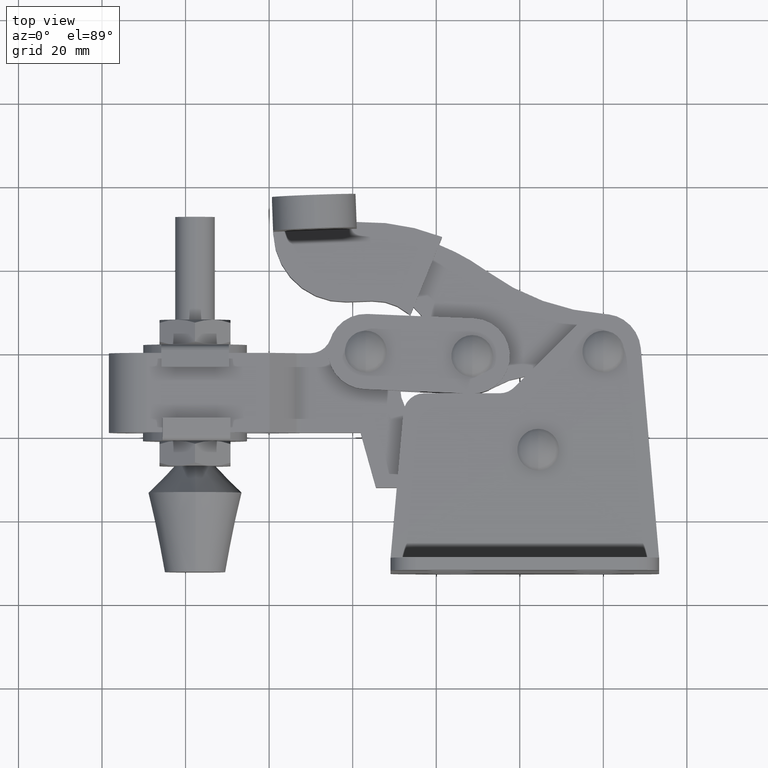
[diagram: clean part render]
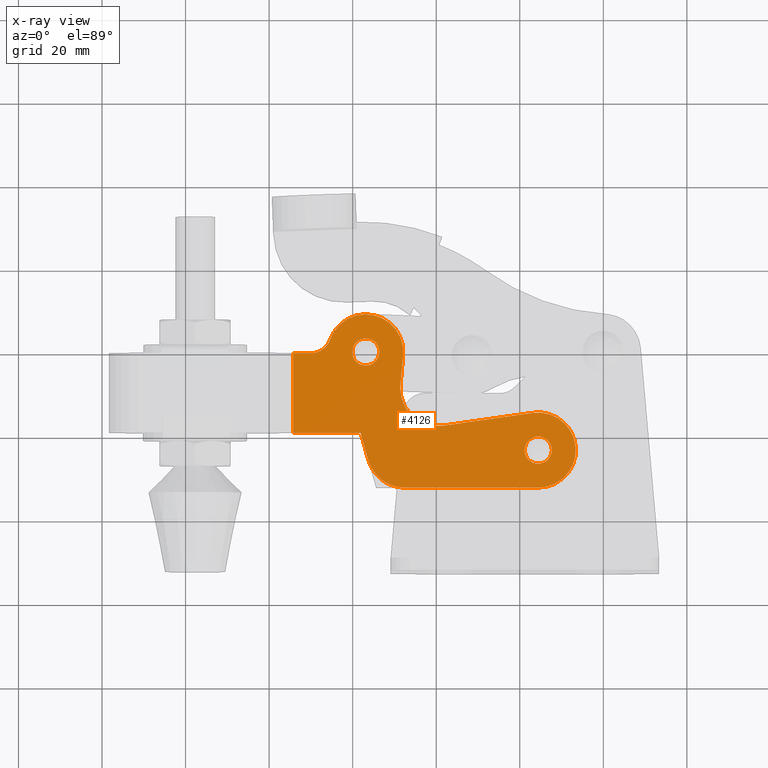
[diagram: x-ray — body ghosted, one internal face saturated and labeled with its STEP entity id]
A machine part, top view, then the same camera in x-ray: the body is ghosted and one INTERNAL B-rep face — a face not visible from any outside direction — is saturated and labeled: STEP entity #4126.
In plain terms, the highlighted planar face has unit normal (0, 0, -1).
Its self-contained STEP definition (entity closure, byte-faithful):
#137 = EDGE_CURVE ( 'NONE', #2921, #10470, #10467, .T. ) ;
#377 = CARTESIAN_POINT ( 'NONE',  ( -74.26887126787852400, -19.36000000000024500, -4.000049999999992800 ) ) ;
#393 = EDGE_CURVE ( 'NONE', #2089, #5907, #5366, .T. ) ;
#409 = AXIS2_PLACEMENT_3D ( 'NONE', #899, #7381, #1835 ) ;
#556 = AXIS2_PLACEMENT_3D ( 'NONE', #11105, #5511, #12054 ) ;
#562 = CIRCLE ( 'NONE', #9094, 9.000000000000063900 ) ;
#590 = CARTESIAN_POINT ( 'NONE',  ( -86.30550662225149900, -45.35999999999979300, -4.000049999999992800 ) ) ;
#608 = DIRECTION ( 'NONE',  ( 0.2699391815934303900, -0.9628773744567211700, 0.0000000000000000000 ) ) ;
#825 = ORIENTED_EDGE ( 'NONE', *, *, #4861, .T. ) ;
#833 = AXIS2_PLACEMENT_3D ( 'NONE', #10416, #4833, #11353 ) ;
#899 = CARTESIAN_POINT ( 'NONE',  ( -15.59000000000019200, -23.49999999999994300, -4.000049999999992800 ) ) ;
#907 = EDGE_CURVE ( 'NONE', #7782, #8382, #8223, .T. ) ;
#969 = CARTESIAN_POINT ( 'NONE',  ( -118.7261130307935100, -0.3599999999997944800, -4.000049999999992800 ) ) ;
#973 = CIRCLE ( 'NONE', #409, 3.249999999999952500 ) ;
#982 = LINE ( 'NONE', #4130, #5639 ) ;
#987 = DIRECTION ( 'NONE',  ( -0.0000000000000000000, -0.0000000000000000000, 1.000000000000000000 ) ) ;
#1007 = VECTOR ( 'NONE', #6532, 1000.000000000000000 ) ;
#1273 = CARTESIAN_POINT ( 'NONE',  ( -65.36059617320184100, 2.983601569428038200, -4.000049999999992800 ) ) ;
#1332 = EDGE_LOOP ( 'NONE', ( #1503, #4627, #3713, #10388, #9163, #4413, #3376, #3164, #5965, #11095, #4161, #9442, #1399 ) ) ;
#1399 = ORIENTED_EDGE ( 'NONE', *, *, #137, .T. ) ;
#1445 = ORIENTED_EDGE ( 'NONE', *, *, #2359, .T. ) ;
#1503 = ORIENTED_EDGE ( 'NONE', *, *, #10375, .T. ) ;
#1516 = VERTEX_POINT ( 'NONE', #3965 ) ;
#1598 = CARTESIAN_POINT ( 'NONE',  ( -58.09761856523894600, -19.36000000000014500, -4.000049999999996300 ) ) ;
#1619 = CARTESIAN_POINT ( 'NONE',  ( -15.59000000000019200, -23.49999999999994300, -4.000049999999992800 ) ) ;
#1623 = CARTESIAN_POINT ( 'NONE',  ( -74.26887126787849500, -0.3599999999997910400, -4.000049999999992800 ) ) ;
#1835 = DIRECTION ( 'NONE',  ( -1.000000000000000000, 0.0000000000000000000, 0.0000000000000000000 ) ) ;
#2089 = VERTEX_POINT ( 'NONE', #9475 ) ;
#2228 = CARTESIAN_POINT ( 'NONE',  ( -47.59000003457293100, -32.50000000969696900, -4.000049999999992800 ) ) ;
#2359 = EDGE_CURVE ( 'NONE', #1516, #3652, #9836, .T. ) ;
#2372 = CIRCLE ( 'NONE', #4116, 9.000000000000049700 ) ;
#2460 = PLANE ( 'NONE',  #6314 ) ;
#2509 = VECTOR ( 'NONE', #5823, 1000.000000000000000 ) ;
#2514 = CARTESIAN_POINT ( 'NONE',  ( -53.61953488110091100, 4.163336342344337000E-014, -4.000049999999992800 ) ) ;
#2554 = DIRECTION ( 'NONE',  ( -1.000000000000000000, 0.0000000000000000000, 0.0000000000000000000 ) ) ;
#2915 = VERTEX_POINT ( 'NONE', #2514 ) ;
#2921 = VERTEX_POINT ( 'NONE', #1623 ) ;
#3076 = ORIENTED_EDGE ( 'NONE', *, *, #9289, .T. ) ;
#3164 = ORIENTED_EDGE ( 'NONE', *, *, #11665, .T. ) ;
#3232 = DIRECTION ( 'NONE',  ( 0.09471580435884172100, 0.9955043527803672000, 0.0000000000000000000 ) ) ;
#3286 = VERTEX_POINT ( 'NONE', #2228 ) ;
#3304 = DIRECTION ( 'NONE',  ( -0.0000000000000000000, -0.0000000000000000000, 1.000000000000000000 ) ) ;
#3340 = VECTOR ( 'NONE', #12006, 1000.000000000000000 ) ;
#3376 = ORIENTED_EDGE ( 'NONE', *, *, #907, .T. ) ;
#3616 = DIRECTION ( 'NONE',  ( 0.0000000000000000000, 0.0000000000000000000, -1.000000000000000000 ) ) ;
#3645 = EDGE_CURVE ( 'NONE', #7488, #3286, #11391, .T. ) ;
#3652 = VERTEX_POINT ( 'NONE', #3773 ) ;
#3682 = EDGE_CURVE ( 'NONE', #3286, #2089, #6415, .T. ) ;
#3706 = CARTESIAN_POINT ( 'NONE',  ( -16.85854850400987100, -14.58984935479915800, -4.000049999999992800 ) ) ;
#3713 = ORIENTED_EDGE ( 'NONE', *, *, #3645, .T. ) ;
#3746 = DIRECTION ( 'NONE',  ( 0.0000000000000000000, 0.0000000000000000000, -1.000000000000000000 ) ) ;
#3773 = CARTESIAN_POINT ( 'NONE',  ( -18.84000000000014600, -23.49999999999994300, -4.000049999999992800 ) ) ;
#3788 = CARTESIAN_POINT ( 'NONE',  ( -70.07825917930959700, -0.3599999999997944800, -4.000049999999992800 ) ) ;
#3965 = CARTESIAN_POINT ( 'NONE',  ( -12.34000000000024000, -23.49999999999994300, -4.000049999999992800 ) ) ;
#4002 = CARTESIAN_POINT ( 'NONE',  ( -56.86953488110086100, 4.163336342344337000E-014, -4.000049999999992800 ) ) ;
#4116 = AXIS2_PLACEMENT_3D ( 'NONE', #4631, #11147, #5547 ) ;
#4126 = ADVANCED_FACE ( 'NONE', ( #4940, #9890, #9588 ), #2460, .F. ) ;
#4130 = CARTESIAN_POINT ( 'NONE',  ( -48.57930677383380700, -7.887192939074527200, -4.000049999999992800 ) ) ;
#4161 = ORIENTED_EDGE ( 'NONE', *, *, #9614, .T. ) ;
#4283 = DIRECTION ( 'NONE',  ( -1.000000000000000000, 0.0000000000000000000, 0.0000000000000000000 ) ) ;
#4413 = ORIENTED_EDGE ( 'NONE', *, *, #9286, .T. ) ;
#4429 = EDGE_LOOP ( 'NONE', ( #1445, #825 ) ) ;
#4617 = EDGE_CURVE ( 'NONE', #7259, #5827, #982, .T. ) ;
#4627 = ORIENTED_EDGE ( 'NONE', *, *, #5194, .T. ) ;
#4631 = CARTESIAN_POINT ( 'NONE',  ( -56.86953489112801900, 3.523528691040667100E-009, -4.000049999999992800 ) ) ;
#4833 = DIRECTION ( 'NONE',  ( 0.0000000000000000000, 0.0000000000000000000, -1.000000000000000000 ) ) ;
#4861 = EDGE_CURVE ( 'NONE', #3652, #1516, #973, .T. ) ;
#4933 = DIRECTION ( 'NONE',  ( -1.000000000000000000, 0.0000000000000000000, 0.0000000000000000000 ) ) ;
#4940 = FACE_BOUND ( 'NONE', #10847, .T. ) ;
#4993 = LINE ( 'NONE', #9538, #2509 ) ;
#5142 = CIRCLE ( 'NONE', #6036, 5.000000000000073700 ) ;
#5158 = AXIS2_PLACEMENT_3D ( 'NONE', #6553, #987, #7478 ) ;
#5194 = EDGE_CURVE ( 'NONE', #6452, #7488, #8973, .T. ) ;
#5275 = DIRECTION ( 'NONE',  ( 0.0000000000000000000, 0.0000000000000000000, -1.000000000000000000 ) ) ;
#5366 = CIRCLE ( 'NONE', #6846, 9.000000000000069300 ) ;
#5509 = VERTEX_POINT ( 'NONE', #3788 ) ;
#5511 = DIRECTION ( 'NONE',  ( 0.0000000000000000000, 0.0000000000000000000, -1.000000000000000000 ) ) ;
#5540 = CARTESIAN_POINT ( 'NONE',  ( -74.26887126787849500, -19.36000000000024500, -4.000049999999992800 ) ) ;
#5547 = DIRECTION ( 'NONE',  ( -1.000000000000000000, -8.881784197015564200E-016, 0.0000000000000000000 ) ) ;
#5639 = VECTOR ( 'NONE', #3232, 999.9999999999998900 ) ;
#5739 = ORIENTED_EDGE ( 'NONE', *, *, #9747, .T. ) ;
#5823 = DIRECTION ( 'NONE',  ( 1.000000000000000000, 0.0000000000000000000, 0.0000000000000000000 ) ) ;
#5827 = VERTEX_POINT ( 'NONE', #8049 ) ;
#5907 = VERTEX_POINT ( 'NONE', #6363 ) ;
#5965 = ORIENTED_EDGE ( 'NONE', *, *, #4617, .T. ) ;
#6036 = AXIS2_PLACEMENT_3D ( 'NONE', #9305, #3746, #10256 ) ;
#6254 = CARTESIAN_POINT ( 'NONE',  ( -60.11953488110080500, 4.203137363316625300E-014, -4.000049999999992800 ) ) ;
#6314 = AXIS2_PLACEMENT_3D ( 'NONE', #590, #5275, #11798 ) ;
#6363 = CARTESIAN_POINT ( 'NONE',  ( -16.85854850400982800, -14.58984935479907800, -4.000049999999992800 ) ) ;
#6415 = LINE ( 'NONE', #11223, #8582 ) ;
#6452 = VERTEX_POINT ( 'NONE', #1598 ) ;
#6455 = DIRECTION ( 'NONE',  ( -0.9900167395110925900, -0.1409498332309240500, 0.0000000000000000000 ) ) ;
#6458 = VECTOR ( 'NONE', #6455, 1000.000000000000100 ) ;
#6492 = VECTOR ( 'NONE', #608, 1000.000000000000200 ) ;
#6532 = DIRECTION ( 'NONE',  ( -1.000000000000000000, 0.0000000000000000000, 0.0000000000000000000 ) ) ;
#6553 = CARTESIAN_POINT ( 'NONE',  ( -47.59000003457292400, -23.50000000969690500, -4.000049999999992800 ) ) ;
#6846 = AXIS2_PLACEMENT_3D ( 'NONE', #8902, #3304, #4283 ) ;
#7000 = CARTESIAN_POINT ( 'NONE',  ( -48.61976759881039800, -8.739635178303997200, -4.000049999999992800 ) ) ;
#7259 = VERTEX_POINT ( 'NONE', #9573 ) ;
#7304 = VERTEX_POINT ( 'NONE', #1273 ) ;
#7381 = DIRECTION ( 'NONE',  ( 0.0000000000000000000, 0.0000000000000000000, -1.000000000000000000 ) ) ;
#7478 = DIRECTION ( 'NONE',  ( -1.000000000000000000, 0.0000000000000000000, 0.0000000000000000000 ) ) ;
#7488 = VERTEX_POINT ( 'NONE', #10853 ) ;
#7782 = VERTEX_POINT ( 'NONE', #10424 ) ;
#7939 = CARTESIAN_POINT ( 'NONE',  ( -53.39517071585083100, -36.13370662536200200, -4.000049999999992800 ) ) ;
#8049 = CARTESIAN_POINT ( 'NONE',  ( -47.90999571634684200, -0.8524422382522809400, -4.000049999999992800 ) ) ;
#8092 = AXIS2_PLACEMENT_3D ( 'NONE', #1619, #8098, #2554 ) ;
#8098 = DIRECTION ( 'NONE',  ( 0.0000000000000000000, 0.0000000000000000000, -1.000000000000000000 ) ) ;
#8223 = CIRCLE ( 'NONE', #556, 9.000000000000063900 ) ;
#8310 = CIRCLE ( 'NONE', #833, 3.249999999999947600 ) ;
#8382 = VERTEX_POINT ( 'NONE', #7000 ) ;
#8582 = VECTOR ( 'NONE', #11261, 1000.000000000000000 ) ;
#8902 = CARTESIAN_POINT ( 'NONE',  ( -15.59000000000019200, -23.50000000969690500, -4.000049999999992800 ) ) ;
#8939 = LINE ( 'NONE', #3706, #6458 ) ;
#8973 = LINE ( 'NONE', #7939, #6492 ) ;
#9094 = AXIS2_PLACEMENT_3D ( 'NONE', #9175, #3616, #10126 ) ;
#9163 = ORIENTED_EDGE ( 'NONE', *, *, #393, .T. ) ;
#9175 = CARTESIAN_POINT ( 'NONE',  ( -39.61976759881033400, -8.739635178303997200, -4.000049999999992800 ) ) ;
#9286 = EDGE_CURVE ( 'NONE', #5907, #7782, #8939, .T. ) ;
#9289 = EDGE_CURVE ( 'NONE', #2915, #11140, #11440, .T. ) ;
#9305 = CARTESIAN_POINT ( 'NONE',  ( -70.07825917930959700, 4.640000000000015700, -4.000049999999992800 ) ) ;
#9442 = ORIENTED_EDGE ( 'NONE', *, *, #11298, .T. ) ;
#9475 = CARTESIAN_POINT ( 'NONE',  ( -15.59000000000019200, -32.50000000969697600, -4.000049999999992800 ) ) ;
#9538 = CARTESIAN_POINT ( 'NONE',  ( -118.7570536710756100, -19.36000000000024500, -4.000049999999992800 ) ) ;
#9573 = CARTESIAN_POINT ( 'NONE',  ( -48.57930676875920300, -7.887192885739210600, -4.000049999999992800 ) ) ;
#9588 = FACE_OUTER_BOUND ( 'NONE', #1332, .T. ) ;
#9614 = EDGE_CURVE ( 'NONE', #7304, #5509, #5142, .T. ) ;
#9747 = EDGE_CURVE ( 'NONE', #11140, #2915, #8310, .T. ) ;
#9836 = CIRCLE ( 'NONE', #8092, 3.249999999999952500 ) ;
#9876 = AXIS2_PLACEMENT_3D ( 'NONE', #4002, #10508, #4933 ) ;
#9890 = FACE_BOUND ( 'NONE', #4429, .T. ) ;
#10126 = DIRECTION ( 'NONE',  ( -1.000000000000000000, 0.0000000000000000000, 0.0000000000000000000 ) ) ;
#10221 = EDGE_CURVE ( 'NONE', #5827, #7304, #2372, .T. ) ;
#10256 = DIRECTION ( 'NONE',  ( -1.000000000000000000, 0.0000000000000000000, 0.0000000000000000000 ) ) ;
#10375 = EDGE_CURVE ( 'NONE', #10470, #6452, #4993, .T. ) ;
#10388 = ORIENTED_EDGE ( 'NONE', *, *, #3682, .T. ) ;
#10416 = CARTESIAN_POINT ( 'NONE',  ( -56.86953488110086100, 4.163336342344337000E-014, -4.000049999999992800 ) ) ;
#10424 = CARTESIAN_POINT ( 'NONE',  ( -38.35121909480087500, -17.64978583320173700, -4.000049999999992800 ) ) ;
#10467 = LINE ( 'NONE', #5540, #3340 ) ;
#10470 = VERTEX_POINT ( 'NONE', #377 ) ;
#10508 = DIRECTION ( 'NONE',  ( 0.0000000000000000000, 0.0000000000000000000, -1.000000000000000000 ) ) ;
#10635 = LINE ( 'NONE', #969, #1007 ) ;
#10847 = EDGE_LOOP ( 'NONE', ( #3076, #5739 ) ) ;
#10853 = CARTESIAN_POINT ( 'NONE',  ( -56.25558942886257100, -25.93054736565914500, -4.000050000000003400 ) ) ;
#11095 = ORIENTED_EDGE ( 'NONE', *, *, #10221, .T. ) ;
#11105 = CARTESIAN_POINT ( 'NONE',  ( -39.61976759881033400, -8.739635178303997200, -4.000049999999992800 ) ) ;
#11140 = VERTEX_POINT ( 'NONE', #6254 ) ;
#11147 = DIRECTION ( 'NONE',  ( -0.0000000000000000000, -0.0000000000000000000, 1.000000000000000000 ) ) ;
#11223 = CARTESIAN_POINT ( 'NONE',  ( -47.59000003457292400, -32.50000000969697600, -4.000049999999992800 ) ) ;
#11261 = DIRECTION ( 'NONE',  ( 1.000000000000000000, 0.0000000000000000000, 0.0000000000000000000 ) ) ;
#11298 = EDGE_CURVE ( 'NONE', #5509, #2921, #10635, .T. ) ;
#11353 = DIRECTION ( 'NONE',  ( -1.000000000000000000, 0.0000000000000000000, 0.0000000000000000000 ) ) ;
#11391 = CIRCLE ( 'NONE', #5158, 9.000000000000063900 ) ;
#11440 = CIRCLE ( 'NONE', #9876, 3.249999999999947600 ) ;
#11665 = EDGE_CURVE ( 'NONE', #8382, #7259, #562, .T. ) ;
#11798 = DIRECTION ( 'NONE',  ( -1.000000000000000000, 0.0000000000000000000, -0.0000000000000000000 ) ) ;
#12006 = DIRECTION ( 'NONE',  ( 0.0000000000000000000, -1.000000000000000000, 0.0000000000000000000 ) ) ;
#12054 = DIRECTION ( 'NONE',  ( -1.000000000000000000, 0.0000000000000000000, 0.0000000000000000000 ) ) ;